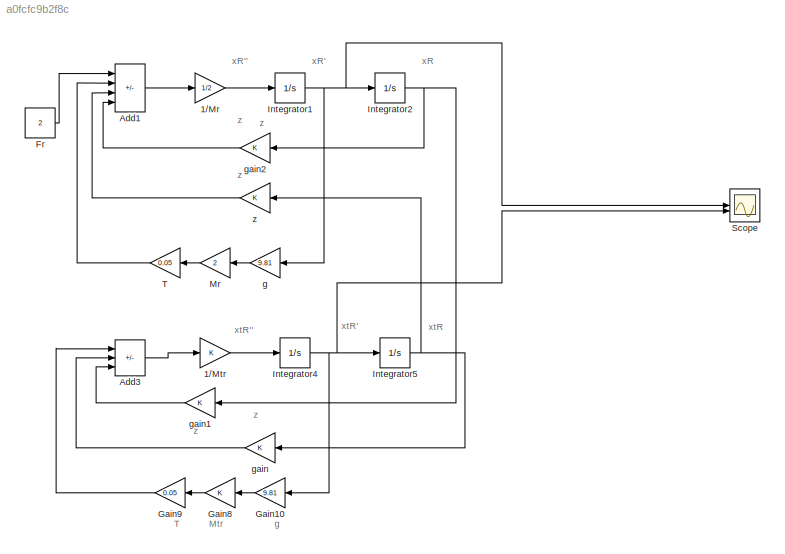
MODEL slx_a0fcfc9b2f8c
KIND model
CONFIG AbsTol = auto
CONFIG EnableMultiTasking = off
CONFIG FixedStep = auto
CONFIG MaxStep = auto
CONFIG MinStep = auto
CONFIG RelTol = 1e-3
CONFIG SampleTimeConstraint = Unconstrained
CONFIG SolverName = VariableStepAuto
CONFIG StartTime = 0.0
CONFIG StopTime = 10.0
BLOCK [Gain] 1//Mr
  Gain = 1/2
BLOCK [Gain] 1//Mtr
BLOCK [Sum] Add1
  IconShape = rectangular
  Inputs = +--+
BLOCK [Sum] Add3
  IconShape = rectangular
  Inputs = --+
BLOCK [Constant] Fr
  Value = 2
BLOCK [Gain] Gain10
  Gain = 9.81
  NameLocation = top
BLOCK [Gain] Gain8
  NameLocation = top
BLOCK [Gain] Gain9
  Gain = 0.05
  NameLocation = top
BLOCK [Integrator] Integrator1
BLOCK [Integrator] Integrator2
BLOCK [Integrator] Integrator4
BLOCK [Integrator] Integrator5
BLOCK [Gain] Mr
  Gain = 2
  NameLocation = top
BLOCK [Scope] Scope
  Floating = off
  NumInputPorts = 2
  ScopeSpecificationString = Simulink.scopes.TimeScopeBlockCfg('CurrentConfiguration', extmgr.ConfigurationSet(extmgr.Configuration('Core','General UI',true),extmgr.Configuration('Core','Source UI',true),extmgr.Configuration('Sources','WiredSimulink',true),extmgr.Configuration('Visuals','Time Domain',true,'SerializedDisplays',{struct('MinYLimReal','-0.56112','MaxYLimReal','5.05008','YLabelReal','','MinYLimMag','0.00000','MaxY...<+1411ch>
BLOCK [Gain] T
  Gain = 0.05
  NameLocation = top
BLOCK [Gain] g
  Gain = 9.81
  NameLocation = top
BLOCK [Gain] gain
  NameLocation = top
BLOCK [Gain] gain1
  NameLocation = top
BLOCK [Gain] gain2
  NameLocation = top
BLOCK [Gain] z
  NameLocation = top
ANNOTATION (root): Mtr
ANNOTATION (root): T
ANNOTATION (root): g
ANNOTATION (root): xR
ANNOTATION (root): xR'
ANNOTATION (root): xR''
ANNOTATION (root): xtR
ANNOTATION (root): xtR'
ANNOTATION (root): xtR''
ANNOTATION (root): z
LINE 1//Mr:1 -> Integrator1:1
LINE 1//Mtr:1 -> Integrator4:1
LINE Add1:1 -> 1//Mr:1
LINE Add3:1 -> 1//Mtr:1
LINE Fr:1 -> Add1:1
LINE Gain10:1 -> Gain8:1
LINE Gain8:1 -> Gain9:1
LINE Gain9:1 -> Add3:1
NET Integrator1:1 -> Integrator2:1, Scope:1, g:1
NET Integrator2:1 -> gain1:1, gain2:1
NET Integrator4:1 -> Gain10:1, Integrator5:1, Scope:2
NET Integrator5:1 -> gain:1, z:1
LINE Mr:1 -> T:1
LINE T:1 -> Add1:2
LINE g:1 -> Mr:1
LINE gain1:1 -> Add3:3
LINE gain2:1 -> Add1:4
LINE gain:1 -> Add3:2
LINE z:1 -> Add1:3
note: NET lines group one-source signal fan-out (src -> all destinations, sorted); 1:1 wires keep LINE
